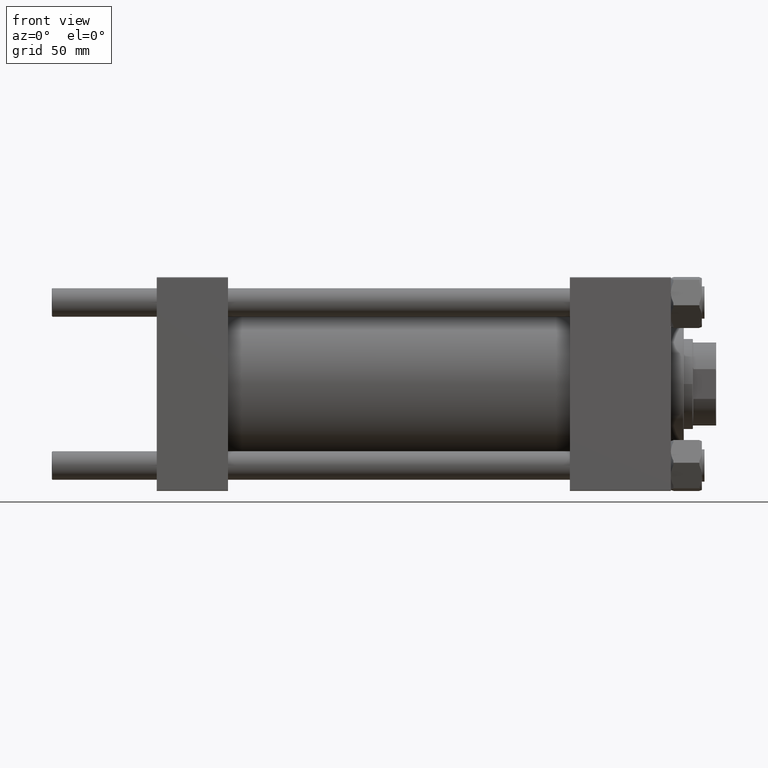
[diagram: clean part render]
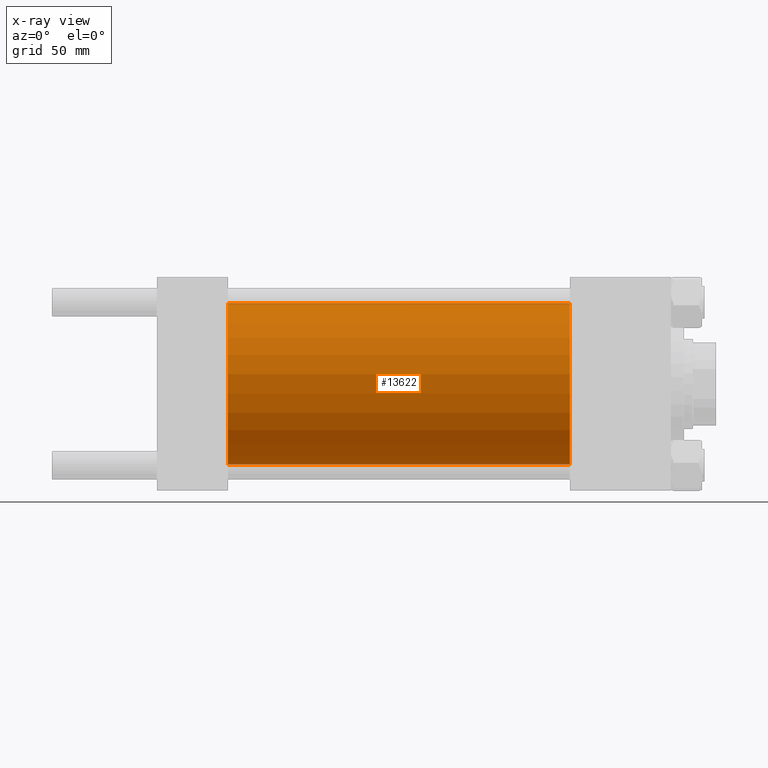
[diagram: x-ray — body ghosted, one internal face saturated and labeled with its STEP entity id]
A machine part, front view, then the same camera in x-ray: the body is ghosted and one INTERNAL B-rep face — a face not visible from any outside direction — is saturated and labeled: STEP entity #13622.
In plain terms, the highlighted cylindrical surface (partial cylindrical patch) has radius 62.5 mm, axis along (-1, -0, -0).
Its self-contained STEP definition (entity closure, byte-faithful):
#69 = CIRCLE ( 'NONE', #10688, 62.50000000000000000 ) ;
#2301 = CARTESIAN_POINT ( 'NONE',  ( 319.0000000000000000, 0.000000000000000000, 62.50000000000000000 ) ) ;
#3334 = AXIS2_PLACEMENT_3D ( 'NONE', #42356, #22725, #46444 ) ;
#5180 = ORIENTED_EDGE ( 'NONE', *, *, #43692, .F. ) ;
#7493 = ORIENTED_EDGE ( 'NONE', *, *, #35111, .F. ) ;
#9514 = ORIENTED_EDGE ( 'NONE', *, *, #15618, .T. ) ;
#10688 = AXIS2_PLACEMENT_3D ( 'NONE', #49518, #14819, #42616 ) ;
#13622 = ADVANCED_FACE ( 'NONE', ( #34474 ), #19147, .F. ) ;
#14301 = LINE ( 'NONE', #44657, #27174 ) ;
#14819 = DIRECTION ( 'NONE',  ( 1.000000000000000000, 0.000000000000000000, 0.000000000000000000 ) ) ;
#15618 = EDGE_CURVE ( 'NONE', #25278, #35164, #39241, .T. ) ;
#19147 = CYLINDRICAL_SURFACE ( 'NONE', #3334, 62.50000000000000000 ) ;
#19469 = DIRECTION ( 'NONE',  ( 0.000000000000000000, 0.000000000000000000, -1.000000000000000000 ) ) ;
#20414 = CARTESIAN_POINT ( 'NONE',  ( 319.0000000000000000, 7.654042494670957804E-15, -62.50000000000000000 ) ) ;
#21585 = VERTEX_POINT ( 'NONE', #32543 ) ;
#22725 = DIRECTION ( 'NONE',  ( -1.000000000000000000, -0.000000000000000000, -0.000000000000000000 ) ) ;
#23678 = EDGE_LOOP ( 'NONE', ( #9514, #35768, #7493, #5180 ) ) ;
#25278 = VERTEX_POINT ( 'NONE', #2301 ) ;
#25587 = VERTEX_POINT ( 'NONE', #47628 ) ;
#27174 = VECTOR ( 'NONE', #41324, 1000.000000000000000 ) ;
#28706 = AXIS2_PLACEMENT_3D ( 'NONE', #42928, #31721, #19469 ) ;
#31721 = DIRECTION ( 'NONE',  ( 1.000000000000000000, 0.000000000000000000, 0.000000000000000000 ) ) ;
#32422 = CARTESIAN_POINT ( 'NONE',  ( 319.0000000000000000, 7.654042494670957804E-15, -62.50000000000000000 ) ) ;
#32543 = CARTESIAN_POINT ( 'NONE',  ( 55.00000000000000000, 7.654042494670957804E-15, -62.50000000000000000 ) ) ;
#34474 = FACE_OUTER_BOUND ( 'NONE', #23678, .T. ) ;
#35111 = EDGE_CURVE ( 'NONE', #25587, #21585, #69, .T. ) ;
#35164 = VERTEX_POINT ( 'NONE', #20414 ) ;
#35768 = ORIENTED_EDGE ( 'NONE', *, *, #46603, .T. ) ;
#36733 = LINE ( 'NONE', #32422, #44360 ) ;
#39241 = CIRCLE ( 'NONE', #28706, 62.50000000000000000 ) ;
#41324 = DIRECTION ( 'NONE',  ( -1.000000000000000000, -0.000000000000000000, -0.000000000000000000 ) ) ;
#42356 = CARTESIAN_POINT ( 'NONE',  ( 319.0000000000000000, 0.000000000000000000, 0.000000000000000000 ) ) ;
#42616 = DIRECTION ( 'NONE',  ( 0.000000000000000000, 0.000000000000000000, -1.000000000000000000 ) ) ;
#42928 = CARTESIAN_POINT ( 'NONE',  ( 319.0000000000000000, 0.000000000000000000, 0.000000000000000000 ) ) ;
#43692 = EDGE_CURVE ( 'NONE', #25278, #25587, #14301, .T. ) ;
#44360 = VECTOR ( 'NONE', #47474, 1000.000000000000000 ) ;
#44657 = CARTESIAN_POINT ( 'NONE',  ( 319.0000000000000000, 0.000000000000000000, 62.50000000000000000 ) ) ;
#46444 = DIRECTION ( 'NONE',  ( 0.000000000000000000, 0.000000000000000000, 1.000000000000000000 ) ) ;
#46603 = EDGE_CURVE ( 'NONE', #35164, #21585, #36733, .T. ) ;
#47474 = DIRECTION ( 'NONE',  ( -1.000000000000000000, -0.000000000000000000, -0.000000000000000000 ) ) ;
#47628 = CARTESIAN_POINT ( 'NONE',  ( 55.00000000000000000, 0.000000000000000000, 62.50000000000000000 ) ) ;
#49518 = CARTESIAN_POINT ( 'NONE',  ( 55.00000000000000000, 0.000000000000000000, 0.000000000000000000 ) ) ;